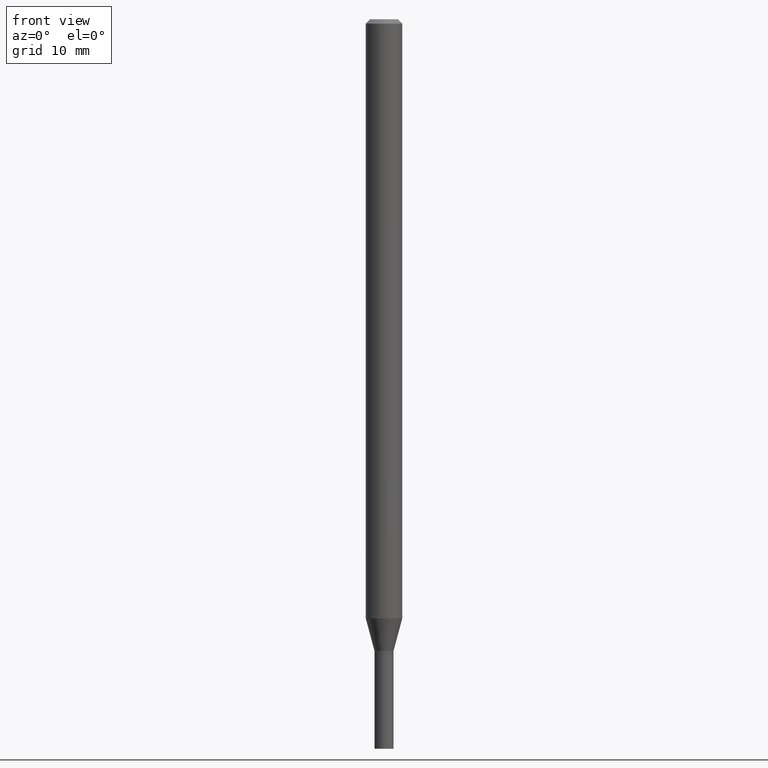
[diagram: clean part render]
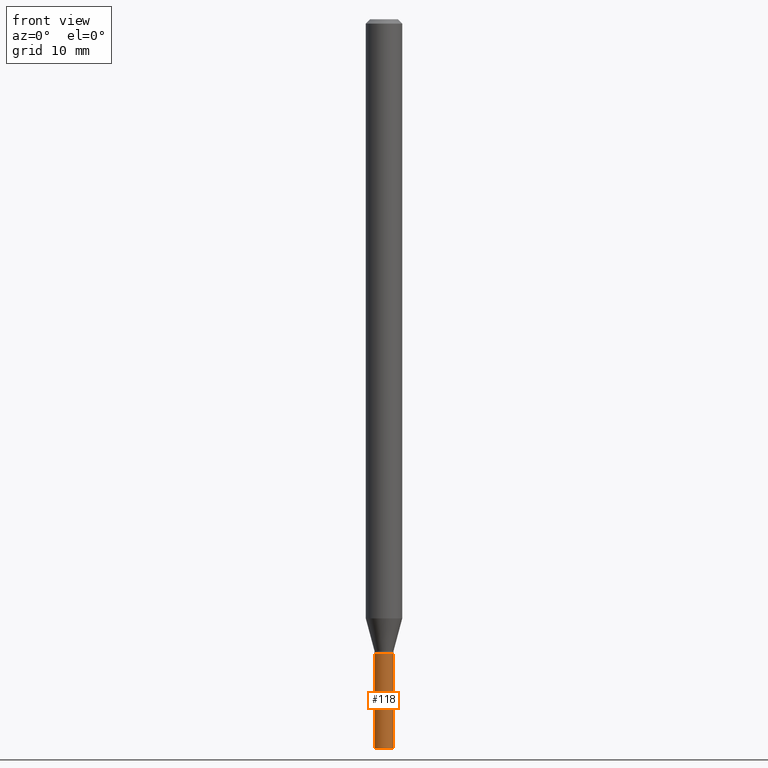
[diagram: same view with one face highlighted and labeled with its STEP entity id]
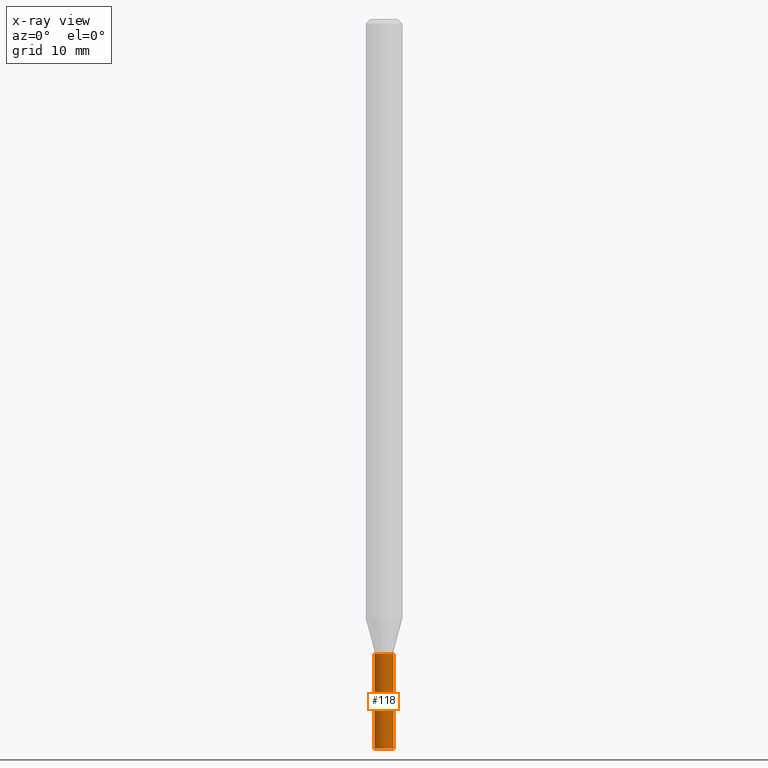
[diagram: x-ray of the same camera — body ghosted, the highlighted face saturated]
A machine part, front view. The second image highlights one B-rep face of the part: STEP entity #118.
The next image is the same camera in x-ray: the body ghosted, the highlighted face saturated — about 0% of this face is hidden behind the body in this view.
In plain terms, the highlighted cylindrical surface (edge-blend (fillet) strip) has radius 0.8255 mm, axis along (-0, 0, 1).
Its self-contained STEP definition (entity closure, byte-faithful):
#21 = VECTOR ( 'NONE', #298, 39.37007874015748143 ) ;
#26 = ORIENTED_EDGE ( 'NONE', *, *, #64, .F. ) ;
#28 = DIRECTION ( 'NONE',  ( 1.000000000000000000, -6.982962677686258033E-15, 0.000000000000000000 ) ) ;
#30 = DIRECTION ( 'NONE',  ( -2.445468806185136597E-29, 3.491481338843145583E-15, 1.000000000000000000 ) ) ;
#42 = AXIS2_PLACEMENT_3D ( 'NONE', #106, #434, #396 ) ;
#46 = LINE ( 'NONE', #147, #21 ) ;
#54 = ORIENTED_EDGE ( 'NONE', *, *, #439, .F. ) ;
#63 = AXIS2_PLACEMENT_3D ( 'NONE', #158, #263, #199 ) ;
#64 = EDGE_CURVE ( 'NONE', #448, #301, #249, .T. ) ;
#84 = VECTOR ( 'NONE', #166, 39.37007874015748143 ) ;
#106 = CARTESIAN_POINT ( 'NONE',  ( 0.000000000000000000, 0.000000000000000000, 0.000000000000000000 ) ) ;
#118 = ADVANCED_FACE ( 'NONE', ( #281 ), #429, .T. ) ;
#147 = CARTESIAN_POINT ( 'NONE',  ( 0.03250000000000000111, -2.269462870248036484E-16, 1.584757452133678993E-30 ) ) ;
#158 = CARTESIAN_POINT ( 'NONE',  ( 6.113672015462842613E-29, -8.728703347107864943E-15, -2.500000000000000000 ) ) ;
#166 = DIRECTION ( 'NONE',  ( -2.445468806185136877E-29, 3.491481338843145188E-15, 1.000000000000000000 ) ) ;
#180 = EDGE_LOOP ( 'NONE', ( #26, #375, #276, #54 ) ) ;
#199 = DIRECTION ( 'NONE',  ( 1.000000000000000000, -6.982962677686287221E-15, 0.000000000000000000 ) ) ;
#225 = CARTESIAN_POINT ( 'NONE',  ( 0.03250000000000000111, -8.955649634132668295E-15, -2.500000000000000000 ) ) ;
#249 = LINE ( 'NONE', #320, #84 ) ;
#263 = DIRECTION ( 'NONE',  ( -2.445468806185136597E-29, 3.491481338843145583E-15, 1.000000000000000000 ) ) ;
#276 = ORIENTED_EDGE ( 'NONE', *, *, #360, .T. ) ;
#281 = FACE_OUTER_BOUND ( 'NONE', #180, .T. ) ;
#298 = DIRECTION ( 'NONE',  ( -2.445468806185136877E-29, 3.491481338843145188E-15, 1.000000000000000000 ) ) ;
#301 = VERTEX_POINT ( 'NONE', #450 ) ;
#303 = CARTESIAN_POINT ( 'NONE',  ( 0.03250000000000000111, -7.820918199008645222E-15, -2.175000000000000266 ) ) ;
#305 = AXIS2_PLACEMENT_3D ( 'NONE', #383, #30, #28 ) ;
#320 = CARTESIAN_POINT ( 'NONE',  ( -0.03250000000000000111, 2.309263891220325683E-16, -1.598653904332844407E-30 ) ) ;
#360 = EDGE_CURVE ( 'NONE', #411, #377, #46, .T. ) ;
#375 = ORIENTED_EDGE ( 'NONE', *, *, #421, .T. ) ;
#377 = VERTEX_POINT ( 'NONE', #303 ) ;
#383 = CARTESIAN_POINT ( 'NONE',  ( 5.318894653452672995E-29, -7.593971911983841869E-15, -2.175000000000000266 ) ) ;
#385 = CARTESIAN_POINT ( 'NONE',  ( -0.03250000000000000111, -7.930411240423821035E-15, -2.500000000000000000 ) ) ;
#393 = CIRCLE ( 'NONE', #305, 0.03250000000000000111 ) ;
#396 = DIRECTION ( 'NONE',  ( 1.000000000000000000, -6.982962677686265922E-15, 4.876176775795935232E-29 ) ) ;
#402 = CIRCLE ( 'NONE', #63, 0.03250000000000000111 ) ;
#411 = VERTEX_POINT ( 'NONE', #225 ) ;
#421 = EDGE_CURVE ( 'NONE', #448, #411, #402, .T. ) ;
#429 = CYLINDRICAL_SURFACE ( 'NONE', #42, 0.03250000000000000111 ) ;
#434 = DIRECTION ( 'NONE',  ( -2.445468806185136597E-29, 3.491481338843145583E-15, 1.000000000000000000 ) ) ;
#439 = EDGE_CURVE ( 'NONE', #301, #377, #393, .T. ) ;
#448 = VERTEX_POINT ( 'NONE', #385 ) ;
#450 = CARTESIAN_POINT ( 'NONE',  ( -0.03250000000000000111, -7.930411240423821035E-15, -2.175000000000000266 ) ) ;